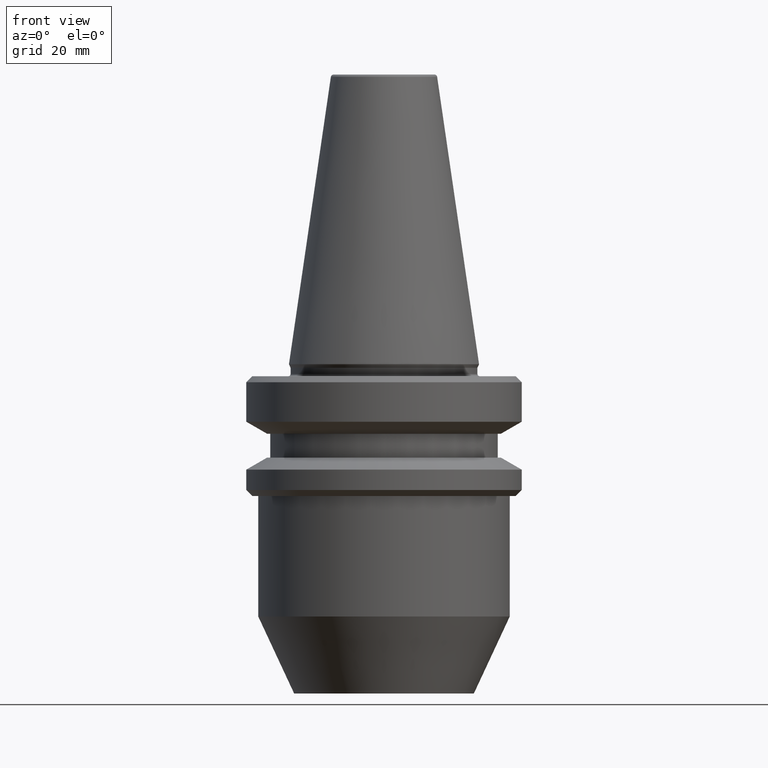
[diagram: clean part render]
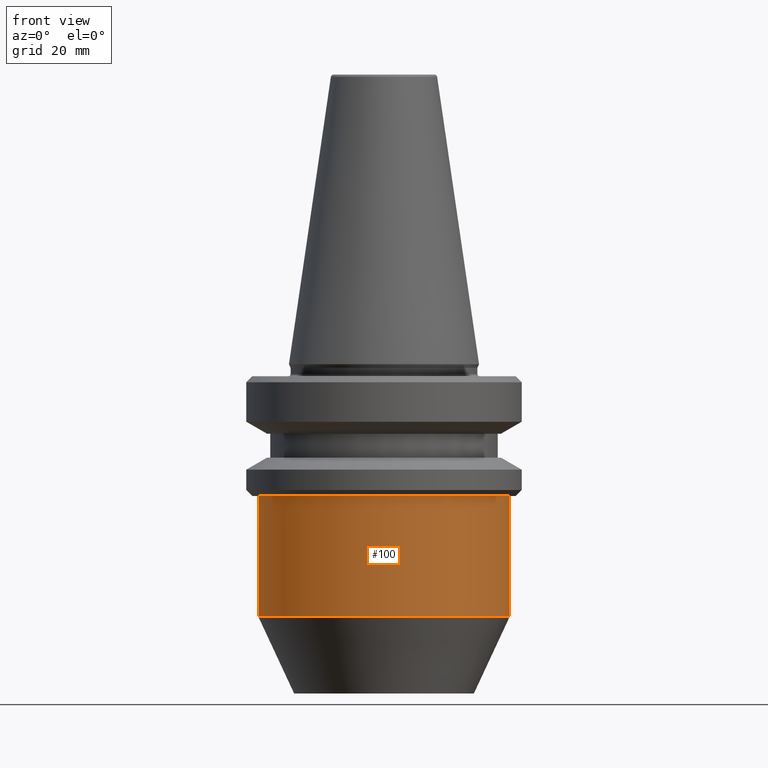
[diagram: same view with one face highlighted and labeled with its STEP entity id]
A machine part, front view. The second image highlights one B-rep face of the part: STEP entity #100.
In plain terms, the highlighted cylindrical surface (partial cylindrical patch) has radius 21 mm, axis along (-0, -0, 1).
Its self-contained STEP definition (entity closure, byte-faithful):
#52 = EDGE_CURVE ( 'NONE', #544, #683, #250, .T. ) ;
#97 = DIRECTION ( 'NONE',  ( 1.000000000000000000, 0.0000000000000000000, 0.0000000000000000000 ) ) ;
#100 = ADVANCED_FACE ( 'NONE', ( #640 ), #617, .T. ) ;
#106 = AXIS2_PLACEMENT_3D ( 'NONE', #818, #508, #128 ) ;
#117 = CARTESIAN_POINT ( 'NONE',  ( 0.0000000000000000000, 0.0000000000000000000, 98.56026596081761700 ) ) ;
#128 = DIRECTION ( 'NONE',  ( 1.000000000000000000, 0.0000000000000000000, 0.0000000000000000000 ) ) ;
#135 = CARTESIAN_POINT ( 'NONE',  ( -21.00000000000001800, 2.571758278209444000E-015, 98.56026596081761700 ) ) ;
#171 = EDGE_LOOP ( 'NONE', ( #390, #660, #537, #240 ) ) ;
#185 = DIRECTION ( 'NONE',  ( -0.0000000000000000000, -0.0000000000000000000, 1.000000000000000000 ) ) ;
#190 = LINE ( 'NONE', #520, #382 ) ;
#191 = DIRECTION ( 'NONE',  ( 1.000000000000000000, 0.0000000000000000000, 0.0000000000000000000 ) ) ;
#195 = DIRECTION ( 'NONE',  ( -0.0000000000000000000, -0.0000000000000000000, 1.000000000000000000 ) ) ;
#240 = ORIENTED_EDGE ( 'NONE', *, *, #522, .F. ) ;
#250 = CIRCLE ( 'NONE', #106, 21.00000000000001800 ) ;
#273 = AXIS2_PLACEMENT_3D ( 'NONE', #734, #369, #97 ) ;
#326 = CARTESIAN_POINT ( 'NONE',  ( 21.00000000000001800, 0.0000000000000000000, -22.00000000000062900 ) ) ;
#328 = CIRCLE ( 'NONE', #273, 21.00000000000001800 ) ;
#339 = CARTESIAN_POINT ( 'NONE',  ( -21.00000000000001800, 2.571758278209444000E-015, -22.00000000000062900 ) ) ;
#369 = DIRECTION ( 'NONE',  ( -0.0000000000000000000, -0.0000000000000000000, 1.000000000000000000 ) ) ;
#382 = VECTOR ( 'NONE', #185, 1000.000000000000000 ) ;
#390 = ORIENTED_EDGE ( 'NONE', *, *, #398, .F. ) ;
#398 = EDGE_CURVE ( 'NONE', #544, #523, #654, .T. ) ;
#399 = CARTESIAN_POINT ( 'NONE',  ( -21.00000000000001800, 2.571758278209443600E-015, -42.13295847694266200 ) ) ;
#458 = VECTOR ( 'NONE', #718, 1000.000000000000000 ) ;
#508 = DIRECTION ( 'NONE',  ( -0.0000000000000000000, -0.0000000000000000000, 1.000000000000000000 ) ) ;
#520 = CARTESIAN_POINT ( 'NONE',  ( 21.00000000000001800, 0.0000000000000000000, 98.56026596081761700 ) ) ;
#522 = EDGE_CURVE ( 'NONE', #523, #938, #328, .T. ) ;
#523 = VERTEX_POINT ( 'NONE', #339 ) ;
#537 = ORIENTED_EDGE ( 'NONE', *, *, #917, .T. ) ;
#544 = VERTEX_POINT ( 'NONE', #399 ) ;
#606 = CARTESIAN_POINT ( 'NONE',  ( 21.00000000000001800, 0.0000000000000000000, -42.13295847694266200 ) ) ;
#617 = CYLINDRICAL_SURFACE ( 'NONE', #797, 21.00000000000001800 ) ;
#640 = FACE_OUTER_BOUND ( 'NONE', #171, .T. ) ;
#654 = LINE ( 'NONE', #135, #458 ) ;
#660 = ORIENTED_EDGE ( 'NONE', *, *, #52, .T. ) ;
#683 = VERTEX_POINT ( 'NONE', #606 ) ;
#718 = DIRECTION ( 'NONE',  ( -0.0000000000000000000, -0.0000000000000000000, 1.000000000000000000 ) ) ;
#734 = CARTESIAN_POINT ( 'NONE',  ( 0.0000000000000000000, 0.0000000000000000000, -22.00000000000062900 ) ) ;
#797 = AXIS2_PLACEMENT_3D ( 'NONE', #117, #195, #191 ) ;
#818 = CARTESIAN_POINT ( 'NONE',  ( 0.0000000000000000000, 0.0000000000000000000, -42.13295847694266200 ) ) ;
#917 = EDGE_CURVE ( 'NONE', #683, #938, #190, .T. ) ;
#938 = VERTEX_POINT ( 'NONE', #326 ) ;